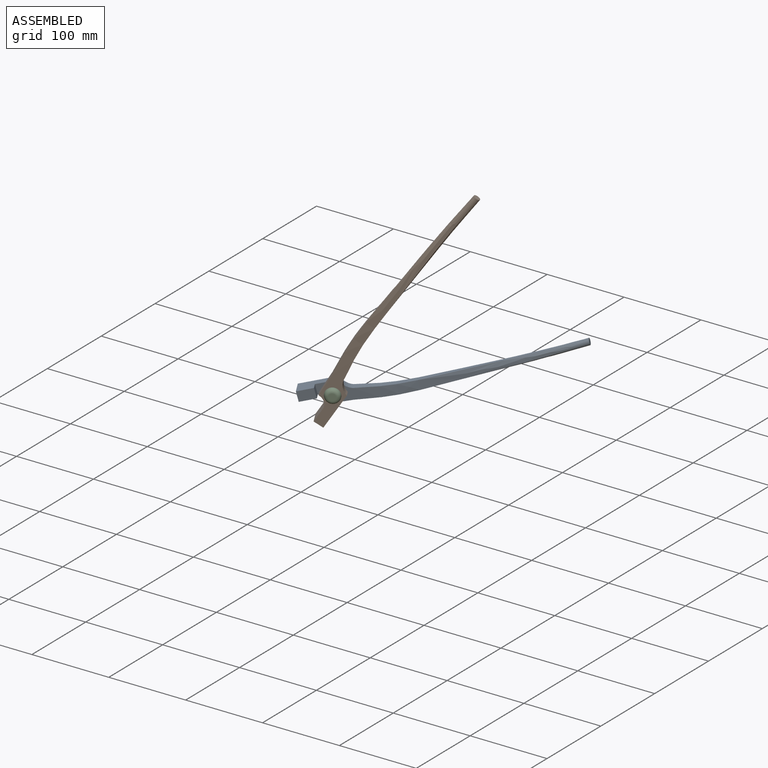
[diagram: assembled view]
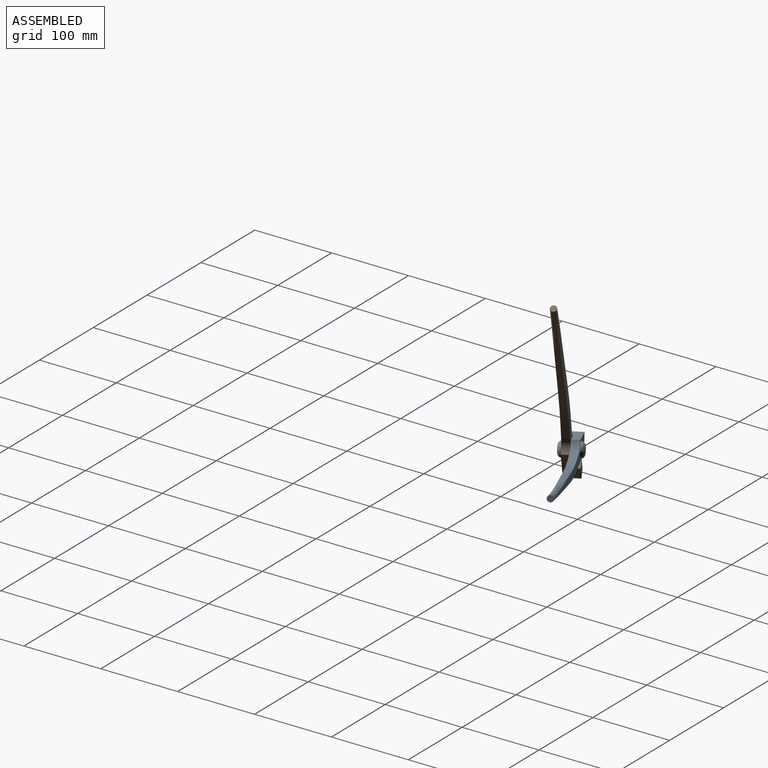
[diagram: assembled view, second angle]
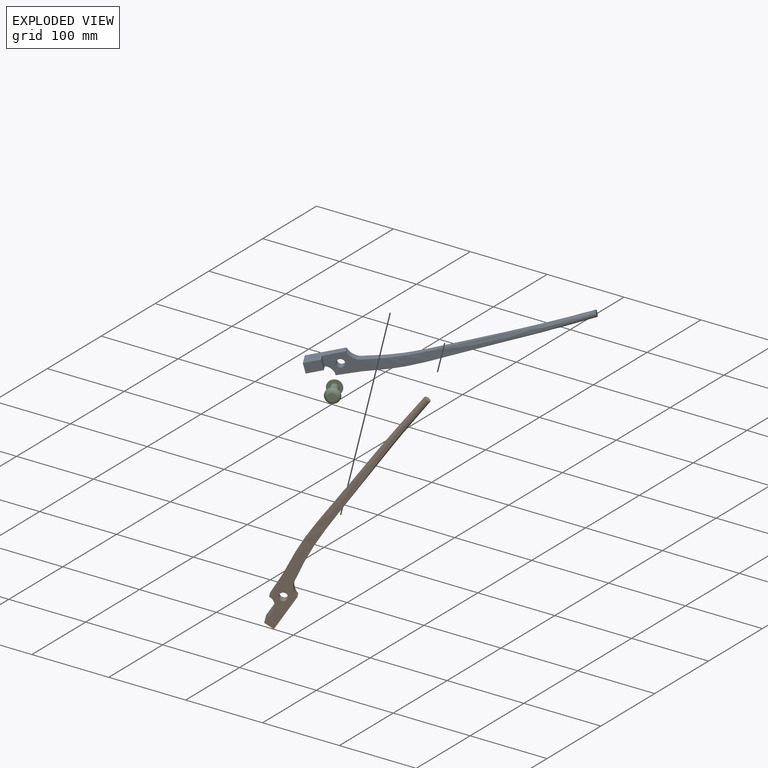
[diagram: exploded view]
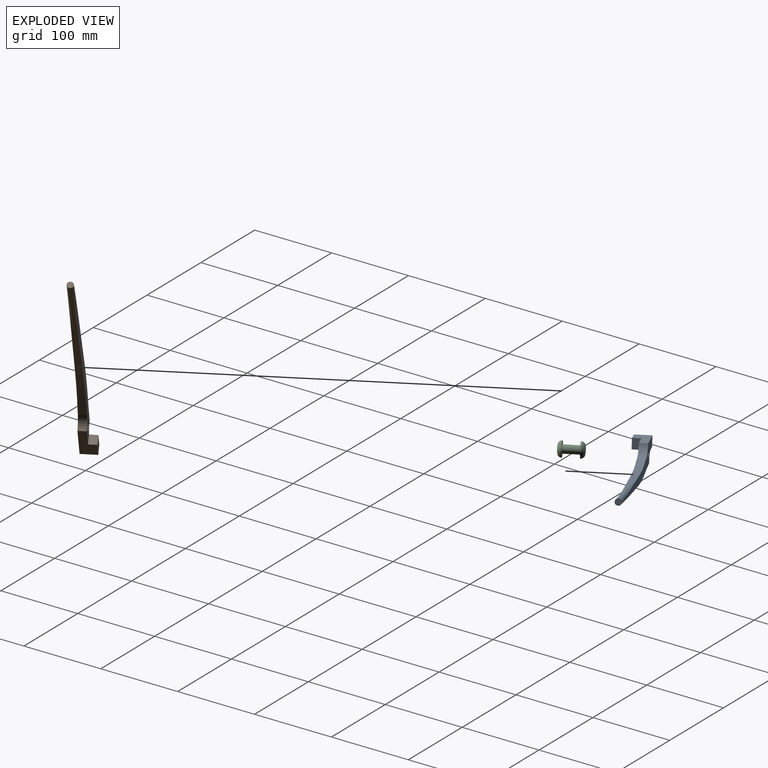
[diagram: exploded view, second angle]
ASSEMBLY  parts=3 mates=2
PART A: 16 faces, bbox 31.4x320x20 mm
  f0: cylinder r=12.22mm len=12.5mm, axis (0,0,-1), area 165.2mm2, adj f1,f5,f6,f9
  f1: plane 27.75x10mm, normal (-1,0.04,0), area 277.7mm2, adj f0,f5,f6,f15
  f2: cylinder r=17.99mm len=12.5mm, axis (0,0,-1), area 183.6mm2, adj f3,f5,f6,f13
  f3: plane 46.19x20mm, normal (1,0,0), area 661.9mm2, adj f2,f5,f6,f7,f8,f10
  f4: cylinder r=5mm len=10mm, axis (0,0,-1), area 314.2mm2, adj f5,f6
  f5: plane 38.55x26.13mm, normal (0,0,1), area 701.9mm2, adj f0,f1,f2,f3,f4,f7,f14
  f6: plane 58.55x26.13mm, normal (0,0,-1), area 951.9mm2, adj f0,f1,f2,f3,f4,f8,f9,f12
  f7: plane 12.5x10mm, normal (0,-1,0), area 125mm2, adj f3,f5,f9,f10
  f8: plane 20x12.5mm, normal (0,1,0), area 250mm2, adj f3,f6,f9,f10
  f9: plane 20x20mm, normal (-1,0,0), area 400mm2, adj f0,f6,f7,f8,f10
  f10: plane 20x12.5mm, normal (0,0,1), area 250mm2, adj f3,f7,f8,f9
  f11: plane 8.02x8.02mm, normal (0,-1,0), area 50.3mm2, adj f12,f13,f14,f15
  f12: bspline ~263.45x20.28mm, area 2558.3mm2, adj f6,f11,f13,f15
  f13: bspline ~261.45x10.46mm, area 2065.4mm2, adj f2,f11,f12,f14
  f14: bspline ~263.45x22.29mm, area 2559.1mm2, adj f5,f11,f13,f15
  f15: bspline ~263.45x17.57mm, area 2086.3mm2, adj f1,f11,f12,f14
PART B: 16 faces, bbox 31.4x320x20 mm
  f0: cylinder r=12.22mm len=12.5mm, axis (0,0,-1), area 165.2mm2, adj f1,f5,f6,f9
  f1: plane 27.75x10mm, normal (-1,0.04,0), area 277.7mm2, adj f0,f5,f6,f15
  f2: cylinder r=17.99mm len=12.5mm, axis (0,0,-1), area 183.6mm2, adj f3,f5,f6,f13
  f3: plane 46.19x20mm, normal (1,0,0), area 661.9mm2, adj f2,f5,f6,f7,f8,f10
  f4: cylinder r=5mm len=10mm, axis (0,0,-1), area 314.2mm2, adj f5,f6
  f5: plane 38.55x26.13mm, normal (0,0,1), area 701.9mm2, adj f0,f1,f2,f3,f4,f7,f14
  f6: plane 58.55x26.13mm, normal (0,0,-1), area 951.9mm2, adj f0,f1,f2,f3,f4,f8,f9,f12
  f7: plane 12.5x10mm, normal (0,-1,0), area 125mm2, adj f3,f5,f9,f10
  f8: plane 20x12.5mm, normal (0,1,0), area 250mm2, adj f3,f6,f9,f10
  f9: plane 20x20mm, normal (-1,0,0), area 400mm2, adj f0,f6,f7,f8,f10
  f10: plane 20x12.5mm, normal (0,0,1), area 250mm2, adj f3,f7,f8,f9
  f11: plane 8.02x8.02mm, normal (0,-1,0), area 50.3mm2, adj f12,f13,f14,f15
  f12: bspline ~263.45x20.28mm, area 2558.3mm2, adj f6,f11,f13,f15
  f13: bspline ~261.45x10.46mm, area 2065.4mm2, adj f2,f11,f12,f14
  f14: bspline ~263.45x22.29mm, area 2559.1mm2, adj f5,f11,f13,f15
  f15: bspline ~263.45x17.57mm, area 2086.3mm2, adj f1,f11,f12,f14
PART C: 7 faces, bbox 18.7x18.7x30 mm
  f0: cylinder r=5mm len=20mm, axis (0,0,-1), area 628.3mm2, adj f2,f5
  f1: plane 8.69x8.69mm, normal (0,0,1), area 59.3mm2, adj f3
  f2: plane 18.69x18.69mm, normal (0,0,-1), area 195.7mm2, adj f0,f3
  f3: torus R=4.34mm, axis (0,0,1), area 371.4mm2, adj f1,f2
  f4: plane 8.7x8.7mm, normal (0,0,-1), area 59.4mm2, adj f6
  f5: plane 18.7x18.7mm, normal (0,0,1), area 196.1mm2, adj f0,f6
  f6: torus R=4.35mm, axis (0,0,-1), area 371.7mm2, adj f4,f5
PLACE A rot(axis=(0.58,-0.45,0.68),147.4deg) t=(-344.87,470.11,25.7)mm
PLACE B rot(axis=(-0.89,0.03,0.46),105.7deg) t=(-386.54,424.09,45.35)mm
PLACE C rot(axis=(-0.34,-0.79,-0.52),112deg) t=(-403.85,413.76,-46.32)mm
MATE fastened C.f0 <-> A.f4  axis (0.49,-0.87,0.01) through (-366.72,457.59,-18.78)mm
MATE cylindrical B.f4 <-> C.f0  axis (0.49,-0.87,0.01) through (-359.41,444.49,-18.69)mm
